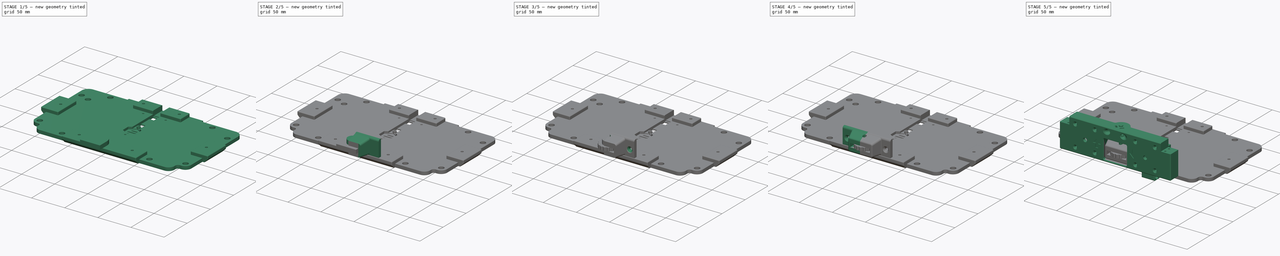
[diagram: build sequence overview — one tinted view per stage of 5, left to right]
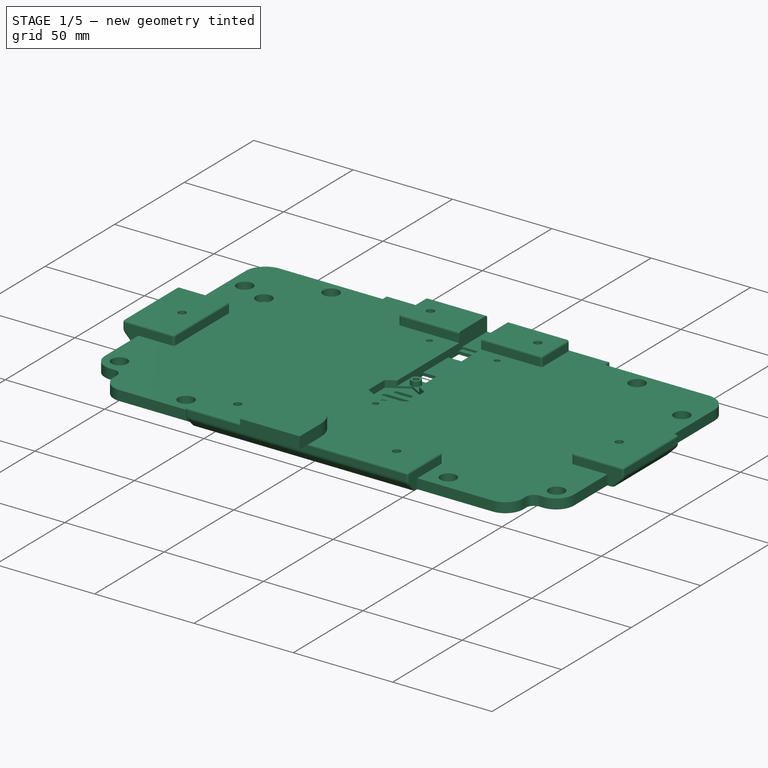
[diagram: stage 1 of 5 — iso view after this stage's code; geometry added in this stage tinted green]
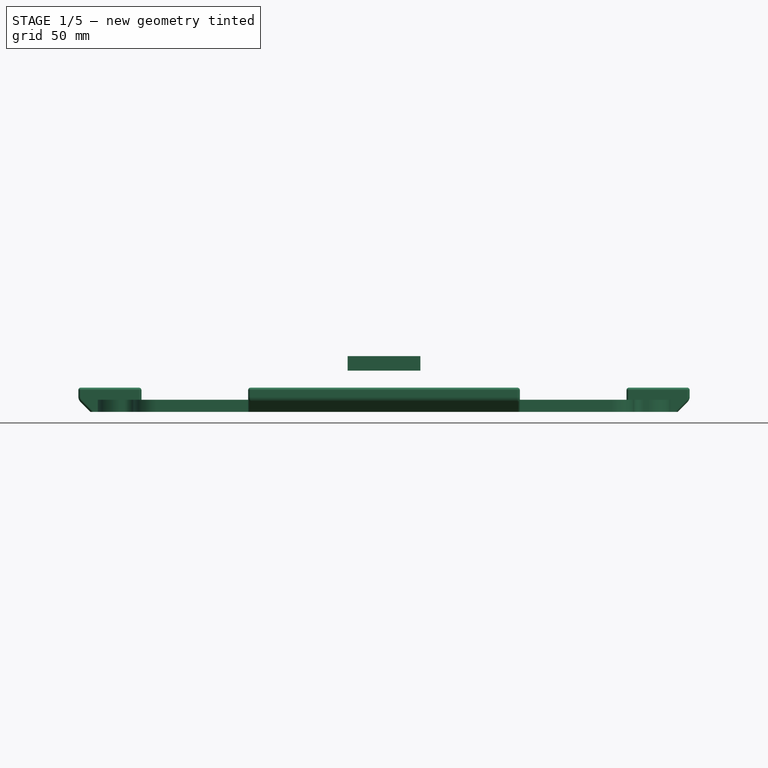
[diagram: stage 1 of 5 — front view after this stage's code; geometry added in this stage tinted green]
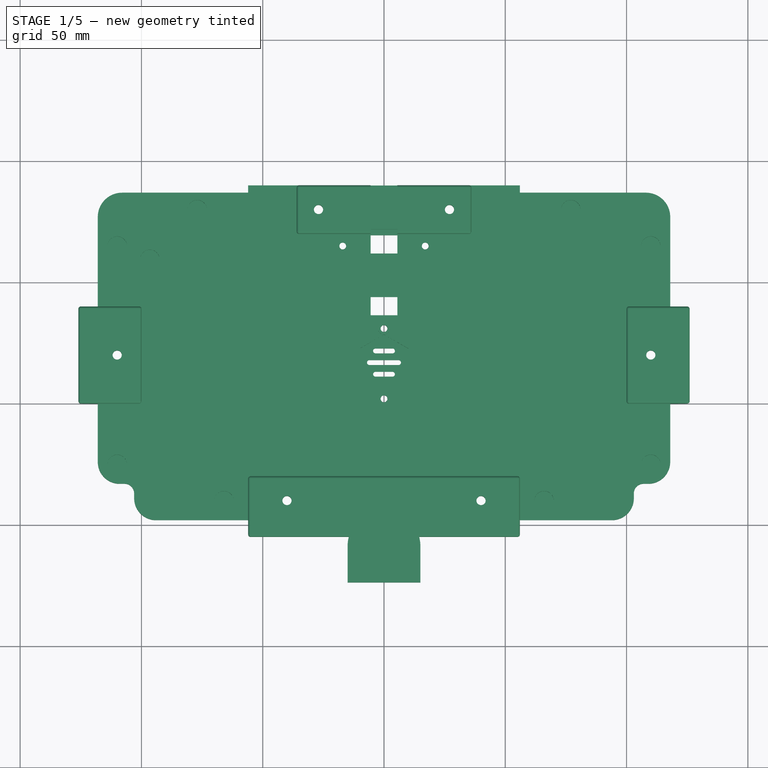
[diagram: stage 1 of 5 — top view after this stage's code; geometry added in this stage tinted green]
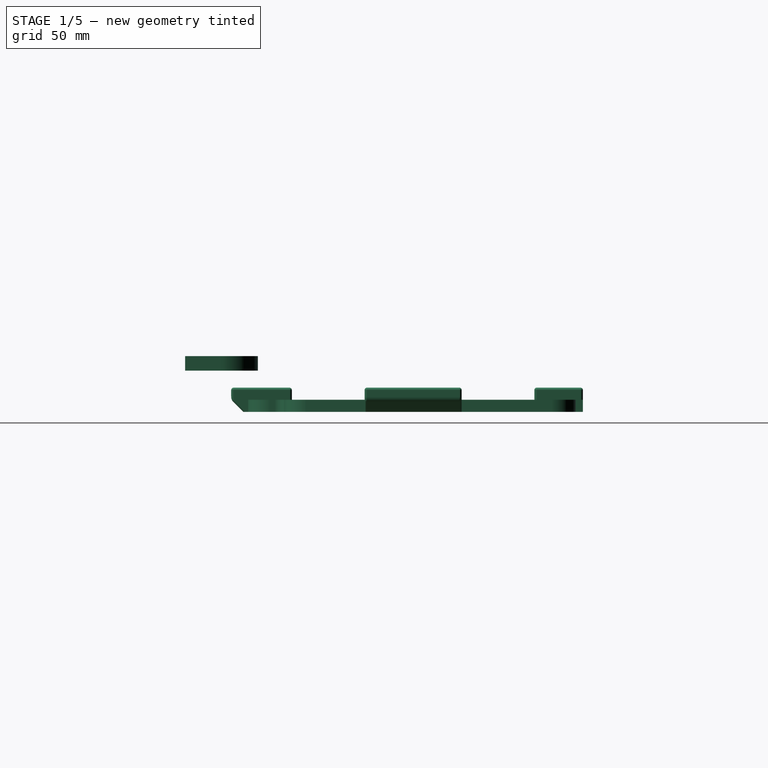
[diagram: stage 1 of 5 — right view after this stage's code; geometry added in this stage tinted green]
FCSTD DOCUMENT  (FreeCAD 0.16RUnknown)
Label: FocusWheelHolder
License: All rights reserved
LicenseURL: http://en.wikipedia.org/wiki/All_rights_reserved
objects: Part::FeaturePython×14, Sketcher::SketchObject×9, PartDesign::Pad×7, Part::Cut×5, Part::Fillet×4, Part::MultiFuse×3, App::DocumentObjectGroup×3, PartDesign::Revolution×2, Part::Mirroring×2, Part::Cylinder×2, Part::Chamfer×2, Part::Feature×1, PartDesign::Draft×1, Spreadsheet::Sheet×1
note: 61 computed .brp shape members not serialized (recipe doc carries the construction recipe); baked Part::Feature solids carry a one-line shape summary decoded from their .brp

FEATURE [Sketcher::SketchObject] Sketch003  label="TWSlot"
  Placement = pos=(0,0,0) rot=(1,0,0;1.5708rad)
  sketch-geometry (4):
    g0: LineSegment StartX=0 StartY=3 StartZ=0 EndX=15 EndY=3 EndZ=0
    g1: LineSegment StartX=15 StartY=3 StartZ=0 EndX=15 EndY=0 EndZ=0
    g2: LineSegment StartX=15 StartY=0 StartZ=0 EndX=0 EndY=0 EndZ=0
    g3: LineSegment StartX=0 StartY=0 StartZ=0 EndX=0 EndY=3 EndZ=0
  constraints (11):
    c: Coincident(g0,g1)
    c: Coincident(g1,g2)
    c: Coincident(g2,g3)
    c: Coincident(g2,g-1)
    c: Horizontal(g0)
    c: Horizontal(g2)
    c: Vertical(g3)
    c: Vertical(g1)
    c: DistanceY(g1,g1) = 3
    c: DistanceX(g2,g2) = 15
    c: Coincident(g3,g0)
FEATURE [PartDesign::Revolution] Revolution  label="TWSlot001"
  Angle = 360
  Axis = (0,0,1)
  Base = (0,0,0)
  Placement = pos=(0,0,0) rot=(1,0,0;1.5708rad)
  ReferenceAxis = -> Sketch003 [V_Axis]
  Reversed = true
  Sketch = -> Sketch003
FEATURE [Part::Mirroring] Part__Mirroring  label="TWSlot001 (Mirror #1)"
  Base = (0,0,0)
  Normal = (0,0,1)
  Source = -> Revolution
FEATURE [Part::MultiFuse] Fusion001  label="TWSlot002"
  Shapes = -> [Revolution,Part__Mirroring]
FEATURE [Sketcher::SketchObject] Sketch004  label="TWSlot003"
  Placement = pos=(0,0,3) rot=(0,0,1;0rad)
  Support = -> Fusion001 [Face1]
  sketch-geometry (6):
    g0: LineSegment StartX=15 StartY=0 StartZ=0 EndX=15 EndY=-15 EndZ=0
    g1: LineSegment StartX=15 StartY=-15 StartZ=0 EndX=-15 EndY=-15 EndZ=0
    g2: LineSegment StartX=-15 StartY=-15 StartZ=0 EndX=-15 EndY=0 EndZ=0
    g3: ArcOfCircle CenterX=0 CenterY=0 CenterZ=0 NormalX=0 NormalY=0 NormalZ=1 Radius=7 StartAngle=3.14159 EndAngle=6.28319
    g4: LineSegment StartX=-15 StartY=0 StartZ=0 EndX=-7 EndY=0 EndZ=0
    g5: LineSegment StartX=7 StartY=0 StartZ=0 EndX=15 EndY=0 EndZ=0
  constraints (17):
    c: Coincident(g0,g1)
    c: Coincident(g1,g2)
    c: Horizontal(g1)
    c: Vertical(g0)
    c: Vertical(g2)
    c: PointOnObject(g0,g-1)
    c: Symmetric(g0,g2,g-2)
    c: DistanceX(g1,g1) = 30
    c: DistanceY(g0,g0) = 15
    c: Coincident(g4,g2)
    c: Coincident(g4,g3)
    c: Coincident(g3,g5)
    c: Coincident(g5,g0)
    c: Horizontal(g5)
    c: Horizontal(g4)
    c: Coincident(g3,g-1)
    c: Radius(g3) = 7
FEATURE [PartDesign::Pad] Pad002  label="TWSlot004"
  Length = 10
  Length2 = 100
  Sketch = -> Sketch004
  Type = 3
  UpToFace = -> Fusion001 [Face4]
FEATURE [Part::FeaturePython] refine001  label="refine_TWSlot004"  # WARN: FeaturePython — macro-defined, semantics opaque (R4)
  Base = -> Pad002
FEATURE [App::DocumentObjectGroup] Group002  label="Component_src"
  Group = -> [Fusion001,Pad002,Cylinder,Pad003,Pad005,Pad004,Revolution001,Pad006,refine001]
FEATURE [Part::FeaturePython] Clone003008006011  label="Clone of refine_TWSlot004"  # Draft clone (typed FeaturePython)
  Objects = -> [refine001]
  Placement = pos=(0,-9,0) rot=(0,0,1;0rad)
  Scale = (1,1,1)
FEATURE [Part::FeaturePython] FocusWheel_01  label="FocusWheel"  # a2plus imported part (geometry in sourceFile) (typed FeaturePython)
  Placement = pos=(0,-9,-2.5) rot=(0,0,1;0rad)
  fixedPosition = false
  sourceFile = ./FocusWheel.fcstd
  timeLastImport = 1.52277e+09
  updateColors = true
FEATURE [Part::FeaturePython] LowerCover_01  label="LowerCover"  # a2plus imported part (geometry in sourceFile) (typed FeaturePython)
  Placement = pos=(0,67,-15) rot=(0,0,1;0rad)
  fixedPosition = false
  sourceFile = ./../../MainFrame/LowerCover.fcstd
  timeLastImport = 1.52166e+09
  updateColors = true
FEATURE [App::DocumentObjectGroup] Group  label="Reference"
  Group = -> [Fillet002,Clone003008006002,FrontGuide_01,FrontCrane_01,Cylinder004,Clone003008006008,FocusWheel_01,LowerCover_01]
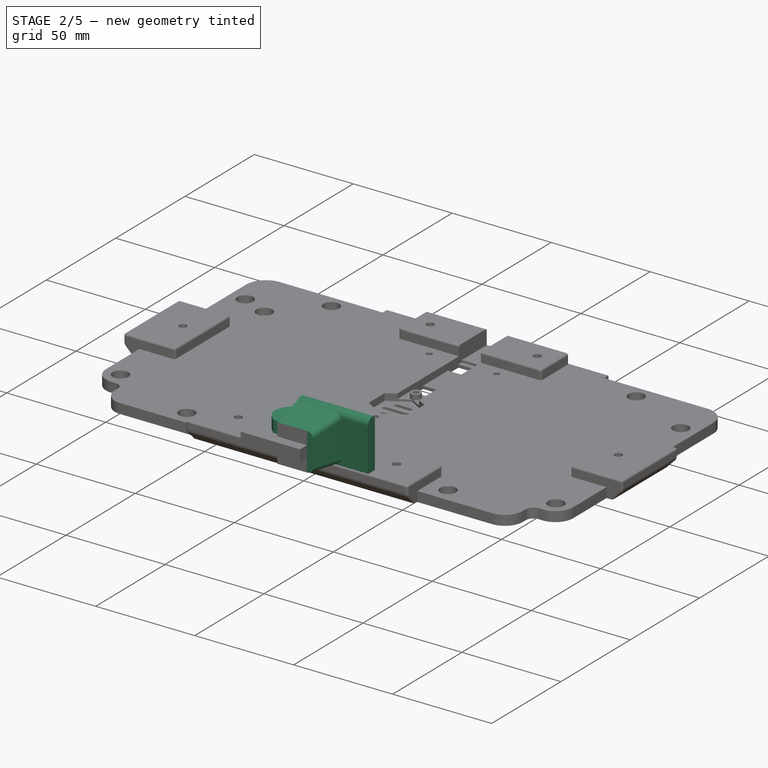
[diagram: stage 2 of 5 — iso view after this stage's code; geometry added in this stage tinted green]
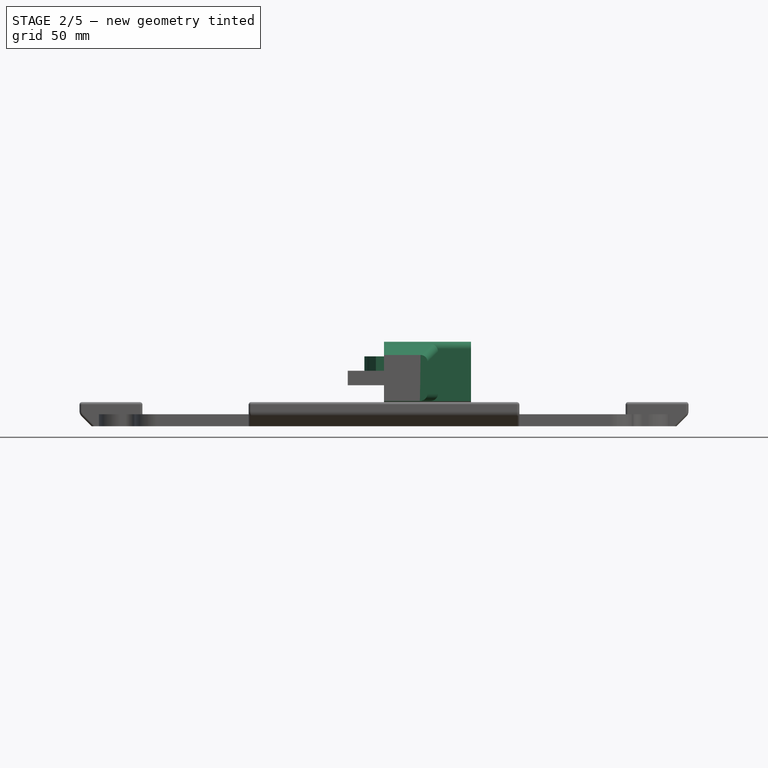
[diagram: stage 2 of 5 — front view after this stage's code; geometry added in this stage tinted green]
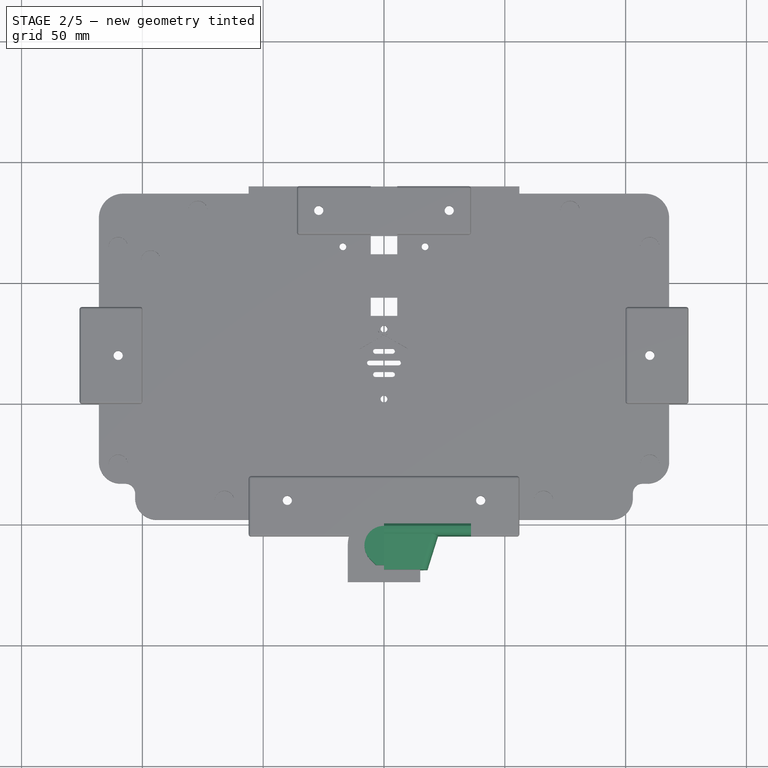
[diagram: stage 2 of 5 — top view after this stage's code; geometry added in this stage tinted green]
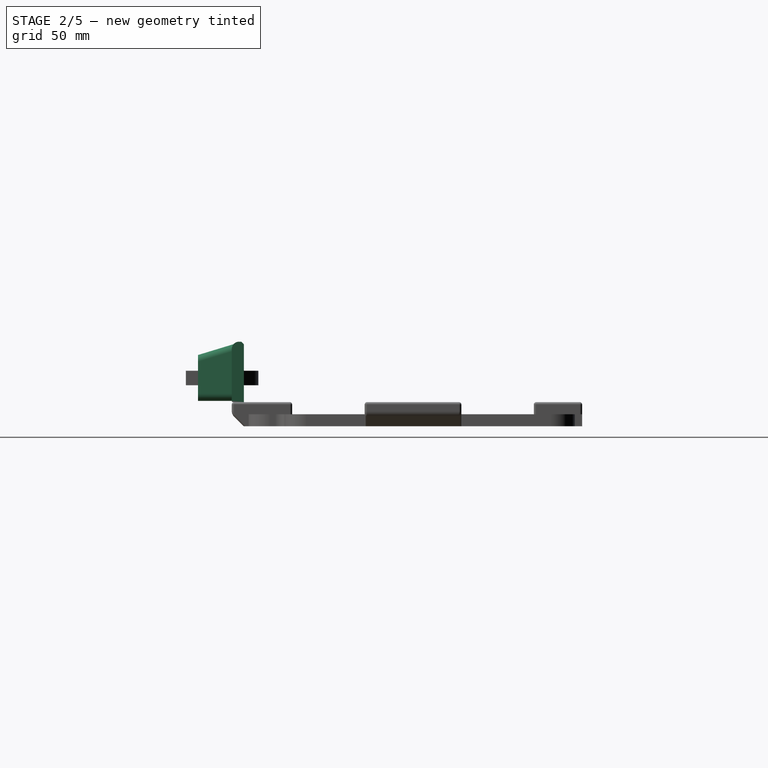
[diagram: stage 2 of 5 — right view after this stage's code; geometry added in this stage tinted green]
FEATURE [Part::Feature] Fillet002  label="T slot extrusion 20x20x200.001"
  Placement = pos=(-100,0,-10) rot=(0,-1,0;1.5708rad)
  shape: bbox 200 x 20 x 20 mm, 51 faces (baked)
FEATURE [Sketcher::SketchObject] Sketch  label="Base"
  Placement = pos=(0,0,0) rot=(1,0,0;1.5708rad)
  sketch-geometry (4):
    g0: LineSegment StartX=0 StartY=15 StartZ=0 EndX=36 EndY=15 EndZ=0
    g1: LineSegment StartX=36 StartY=15 StartZ=0 EndX=36 EndY=-10 EndZ=0
    g2: LineSegment StartX=36 StartY=-10 StartZ=0 EndX=0 EndY=-10 EndZ=0
    g3: LineSegment StartX=0 StartY=-10 StartZ=0 EndX=0 EndY=15 EndZ=0
  constraints (12):
    c: Coincident(g0,g1)
    c: Coincident(g1,g2)
    c: Coincident(g2,g3)
    c: Coincident(g3,g0)
    c: Horizontal(g0)
    c: Horizontal(g2)
    c: Vertical(g1)
    c: Vertical(g3)
    c: PointOnObject(g0,g-2)
    c: DistanceY(g0) = 15
    c: DistanceY(g1,g1) = 25
    c: DistanceX(g0,g0) = 36
FEATURE [PartDesign::Pad] Pad  label="Base001"
  Length = 5
  Length2 = 100
  Placement = pos=(0,0,0) rot=(1,0,0;1.5708rad)
  Sketch = -> Sketch
  Type = 0
FEATURE [Part::Fillet] Fillet  label="NiceFillet"
  Base = -> Pad
  Edges = 2 edges: [Edge4 r=3,Edge10 r=0.5]
FEATURE [Sketcher::SketchObject] Sketch001  label="TWHolder"
  sketch-geometry (4):
    g0: LineSegment StartX=0 StartY=-19 StartZ=0 EndX=18 EndY=-19 EndZ=0
    g1: LineSegment StartX=18 StartY=-19 StartZ=0 EndX=23 EndY=-3 EndZ=0
    g2: LineSegment StartX=23 StartY=-3 StartZ=0 EndX=0 EndY=-3 EndZ=0
    g3: LineSegment StartX=0 StartY=-3 StartZ=0 EndX=0 EndY=-19 EndZ=0
  constraints (12):
    c: Coincident(g0,g1)
    c: Coincident(g1,g2)
    c: Coincident(g2,g3)
    c: Coincident(g0,g3)
    c: Horizontal(g2)
    c: Vertical(g3)
    c: Horizontal(g0)
    c: PointOnObject(g2,g-2)
    c: DistanceY(g2) = -3
    c: DistanceY(g0) = -19
    c: DistanceX(g0,g0) = 18
    c: DistanceX(g2,g2) = 23
FEATURE [PartDesign::Pad] Pad001  label="TWHolder001"
  Length = 9.5
  Length2 = 9.5
  Sketch = -> Sketch001
  Type = 4
FEATURE [PartDesign::Draft] Draft  label="TWHDraft"
  Angle = 16.9
  Base = -> Pad001 [Face6]
  NeutralPlane = -> Pad001 [Face1]
  Reversed = true
FEATURE [Part::Fillet] Fillet003  label="NiceFillet001"
  Base = -> Draft
  Edges = 2 edges r=3: [Edge6,Edge7]
FEATURE [Sketcher::SketchObject] Sketch011  label="625ZZHole"
  expr: Constraints[11] = 8 + pars.CilLoose
  sketch-geometry (4):
    g0: ArcOfCircle CenterX=0 CenterY=0 CenterZ=0 NormalX=0 NormalY=0 NormalZ=1 Radius=8.1 StartAngle=2.3562 EndAngle=7.06859
    g1: LineSegment StartX=-5.72759 StartY=5.72754 StartZ=0 EndX=-3.35513 EndY=8.1 EndZ=0
    g2: LineSegment StartX=-3.35513 StartY=8.1 StartZ=0 EndX=3.35513 EndY=8.1 EndZ=0
    g3: LineSegment StartX=3.35513 StartY=8.1 StartZ=0 EndX=5.72754 EndY=5.72759 EndZ=0
  constraints (12):
    c: Coincident(g1,g2)
    c: Coincident(g2,g3)
    c: Coincident(g0,g1)
    c: Coincident(g0,g3)
    c: Tangent(g3,g0)
    c: Tangent(g0,g1)
    c: Tangent(g2,g0)
    c: Perpendicular(g1,g3)
    c: Horizontal(g2)
    c: Angle(g2,g3) = 2.35619
    c: Coincident(g0,g-1)
    c: Radius(g0) = 8.1
FEATURE [PartDesign::Pad] Pad006  label="625ZZHole001"
  Length = 8
  Length2 = 100
  Sketch = -> Sketch011
  Type = 0
FEATURE [Part::FeaturePython] Clone003008006009  label="Clone of 625ZZHole001"  # Draft clone (typed FeaturePython)
  Objects = -> [Pad006]
  Placement = pos=(0,-9,8.95) rot=(-1,0,0;3.14159rad)
  Scale = (1,1,1)
  expr: Placement.Base.z = 9 - pars.BearTight / 2
FEATURE [Part::Chamfer] Chamfer001
  Base = -> Fillet
  Edges = 1 edges r=1: [Edge3]
FEATURE [Part::MultiFuse] Fusion003
  Shapes = -> [Fillet003,Chamfer001]
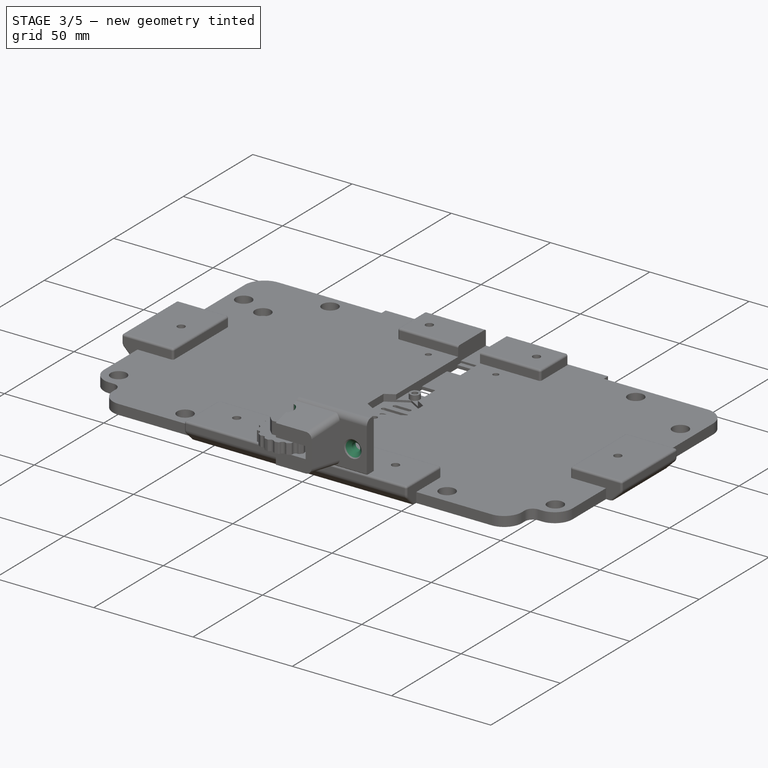
[diagram: stage 3 of 5 — iso view after this stage's code; geometry added in this stage tinted green]
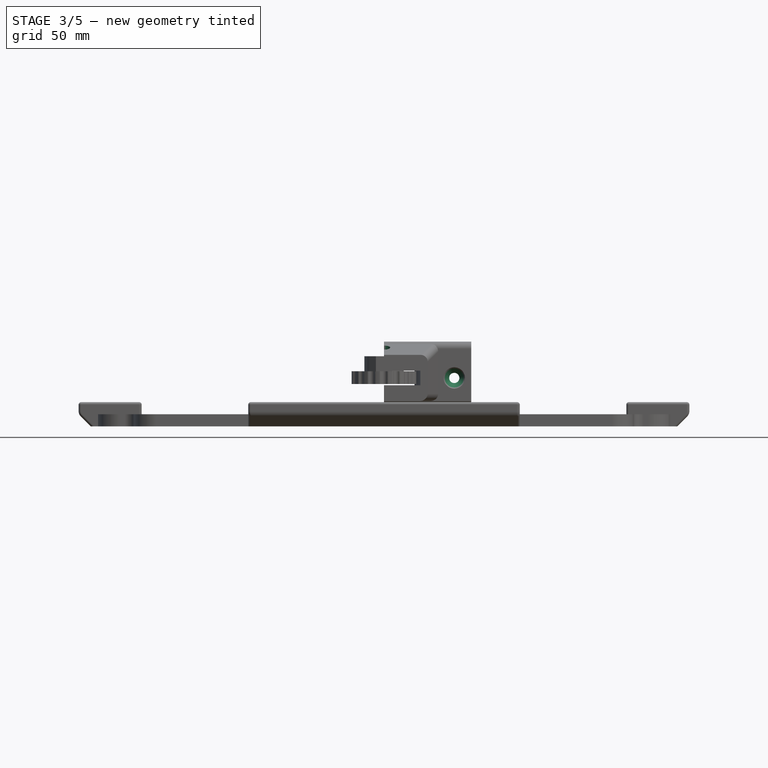
[diagram: stage 3 of 5 — front view after this stage's code; geometry added in this stage tinted green]
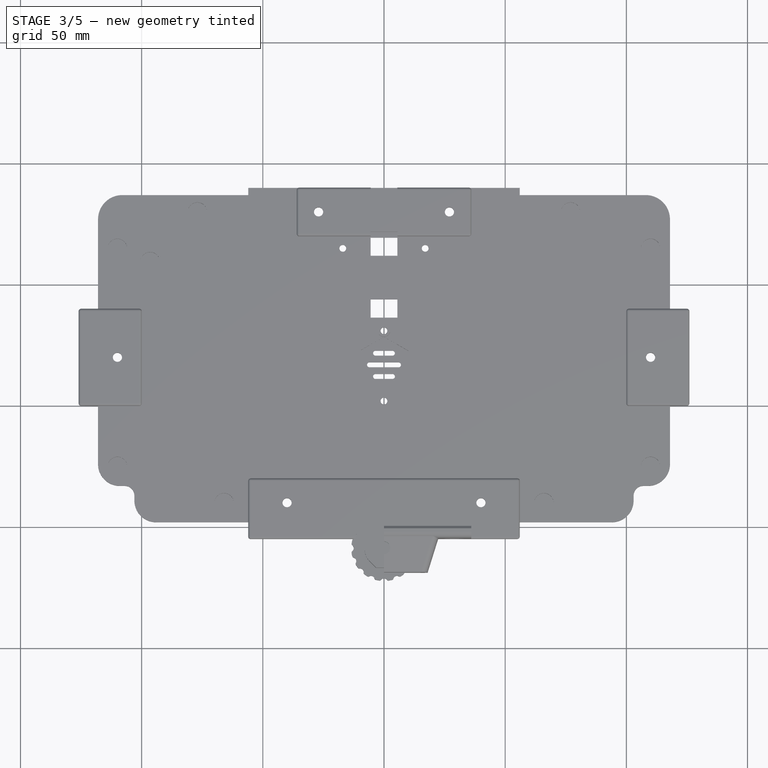
[diagram: stage 3 of 5 — top view after this stage's code; geometry added in this stage tinted green]
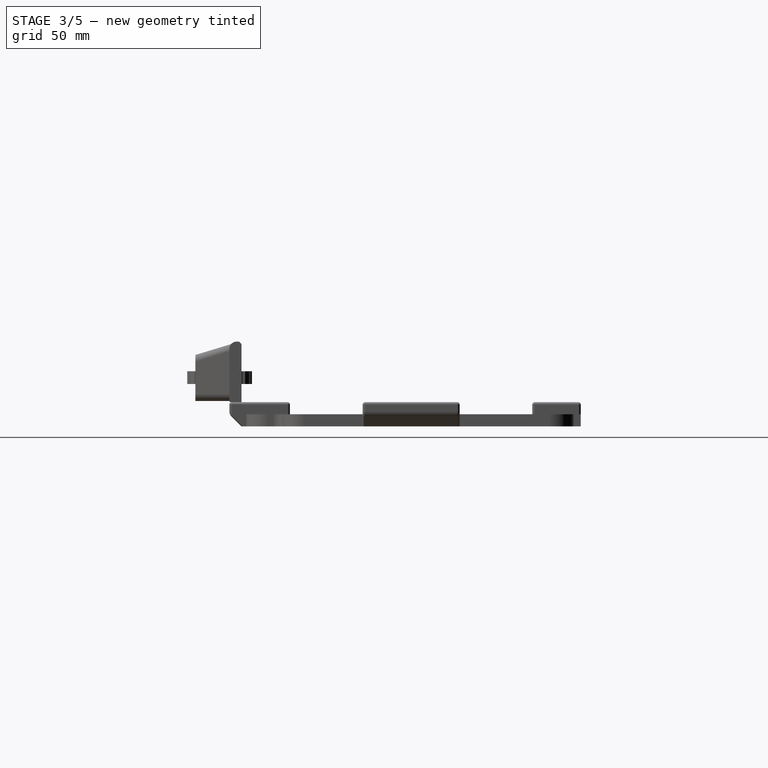
[diagram: stage 3 of 5 — right view after this stage's code; geometry added in this stage tinted green]
FEATURE [Sketcher::SketchObject] Sketch005  label="ThrRodHole"
  expr: Constraints[11] = 2.5 + pars.CilLoose
  sketch-geometry (4):
    g0: ArcOfCircle CenterX=0 CenterY=0 CenterZ=0 NormalX=0 NormalY=0 NormalZ=1 Radius=2.6 StartAngle=2.35619 EndAngle=7.06858
    g1: LineSegment StartX=-1.83848 StartY=1.83848 StartZ=0 EndX=-1.07696 EndY=2.6 EndZ=0
    g2: LineSegment StartX=-1.07696 StartY=2.6 StartZ=0 EndX=1.07696 EndY=2.6 EndZ=0
    g3: LineSegment StartX=1.07696 StartY=2.6 StartZ=0 EndX=1.83848 EndY=1.83848 EndZ=0
  constraints (12):
    c: Coincident(g1,g2)
    c: Coincident(g2,g3)
    c: Coincident(g0,g1)
    c: Coincident(g0,g3)
    c: Tangent(g3,g0)
    c: Tangent(g0,g1)
    c: Tangent(g2,g0)
    c: Perpendicular(g1,g3)
    c: Horizontal(g2)
    c: Angle(g2,g3) = 2.35619
    c: Coincident(g0,g-1)
    c: Radius(g0) = 2.6
FEATURE [PartDesign::Pad] Pad003  label="ThrRodHole001"
  Length = 50
  Length2 = 100
  Sketch = -> Sketch005
  Type = 0
FEATURE [Part::FeaturePython] Clone003008006003  label="Clone of ThrRodHole001"  # Draft clone (typed FeaturePython)
  Objects = -> [Pad003]
  Placement = pos=(0,-9,-14) rot=(0,0,1;3.14159rad)
  Scale = (1,1,1)
FEATURE [Sketcher::SketchObject] Sketch010  label="DIN7991M4Bolt"
  expr: Constraints[11] = pars.CilLoose + 2
  sketch-geometry (5):
    g0: LineSegment StartX=0 StartY=0 StartZ=0 EndX=4.4 EndY=0 EndZ=0
    g1: LineSegment StartX=4.4 StartY=0 StartZ=0 EndX=2.1 EndY=-2.3 EndZ=0
    g2: LineSegment StartX=2.1 StartY=-2.3 StartZ=0 EndX=2.1 EndY=-20 EndZ=0
    g3: LineSegment StartX=2.1 StartY=-20 StartZ=0 EndX=0 EndY=-20 EndZ=0
    g4: LineSegment StartX=0 StartY=-20 StartZ=0 EndX=0 EndY=0 EndZ=0
  constraints (14):
    c: Coincident(g0,g1)
    c: Coincident(g1,g2)
    c: Coincident(g2,g3)
    c: Coincident(g3,g4)
    c: Coincident(g4,g0)
    c: Vertical(g4)
    c: Vertical(g2)
    c: Horizontal(g0)
    c: Horizontal(g3)
    c: Coincident(g0,g-1)
    c: Angle(g0,g1) = 0.785398
    c: DistanceX(g3,g3) = 2.1
    c: DistanceY(g4,g4) = 20
    c: DistanceY(g1,g0) = 2.3
FEATURE [Spreadsheet::Sheet] Spreadsheet001  label="pars"
  cells = A1=Bolts and Nuts; B1=Value; D1=Components; E1=Value; A2=Thread Tight Tolerance (Radius, ratio); B2(ThrTighRatio)=0.96; D2=Tight Cilinder Tolerances (Radius, mm); E2(CilTight)=0.1; A3=Thread Tight Tolerance (Radius, mm); B3(ThrTightmm)=0.1; D3=Loose Cilinder Tolerances (Radius, mm); E3(CilLoose)=0.1; A5=Nut Slot Width Clearance (mm); B5(NutWidthClearmm)=0.1; A6=Nut Slot Thickess Clearance (mm); B6(NutThickClearmm)=0.1; A13=Particular parameters; B13=Value; A14=Threaded Rod Clearance; B14(ThrRodClear)=0.15; A15=625ZZ Tightness; B15(BearTight)=0.1
FEATURE [PartDesign::Revolution] Revolution001  label="DIN7991M4Bolt001"
  Angle = 360
  Axis = (0,1,0)
  Base = (0,0,0)
  ReferenceAxis = -> Sketch010 [V_Axis]
  Reversed = true
  Sketch = -> Sketch010
FEATURE [Part::FeaturePython] Clone003008006006  label="Clone of DIN7991M4Bolt001"  # Draft clone (typed FeaturePython)
  Objects = -> [Revolution001]
  Placement = pos=(29,-5,0) rot=(0,0,1;3.14159rad)
  Scale = (1,1,1)
FEATURE [Part::Cut] Cut  label="TWSlot005"
  Base = -> Fusion003
  Tool = -> Clone003008006011
FEATURE [Part::Chamfer] Chamfer  label="AntiCreaseChamfer"
  Base = -> Cut
  Edges = 1 edges r=1: [Edge47]
FEATURE [Part::Cut] Cut001  label="ThrRodCut"
  Base = -> Chamfer
  Tool = -> Clone003008006003
FEATURE [Part::Cut] Cut002  label="BoltCut"
  Base = -> Cut001
  Tool = -> Clone003008006006
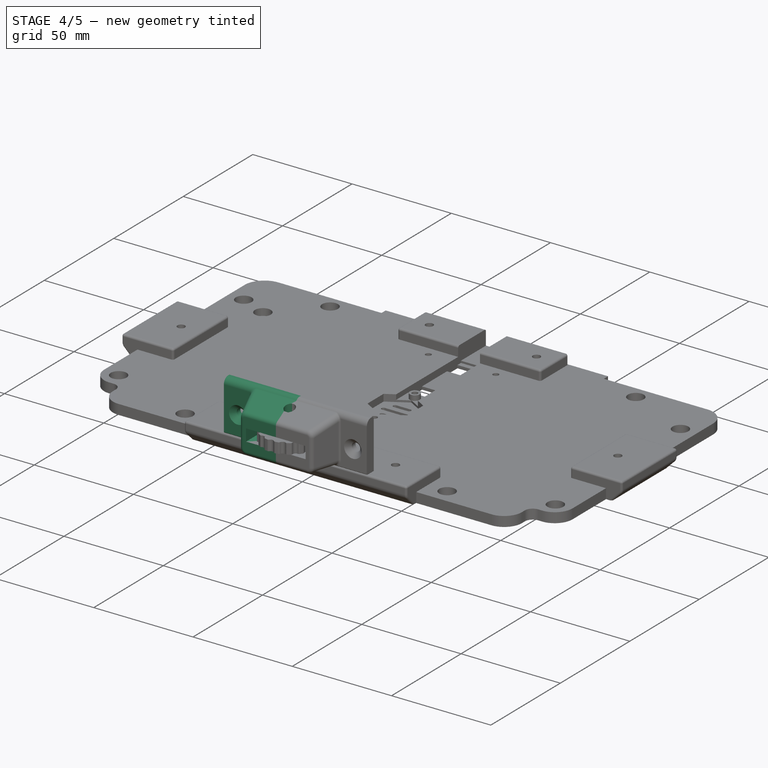
[diagram: stage 4 of 5 — iso view after this stage's code; geometry added in this stage tinted green]
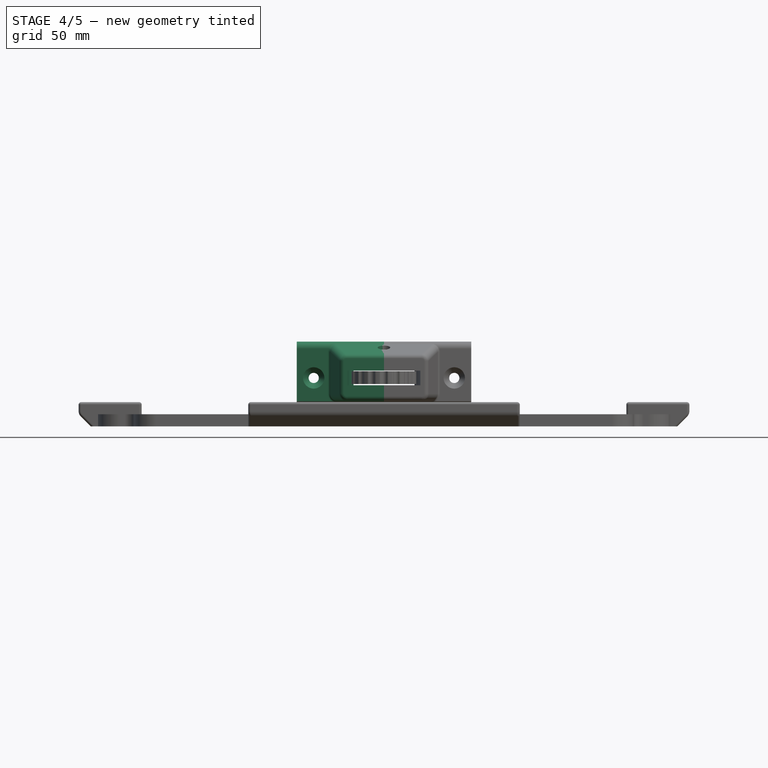
[diagram: stage 4 of 5 — front view after this stage's code; geometry added in this stage tinted green]
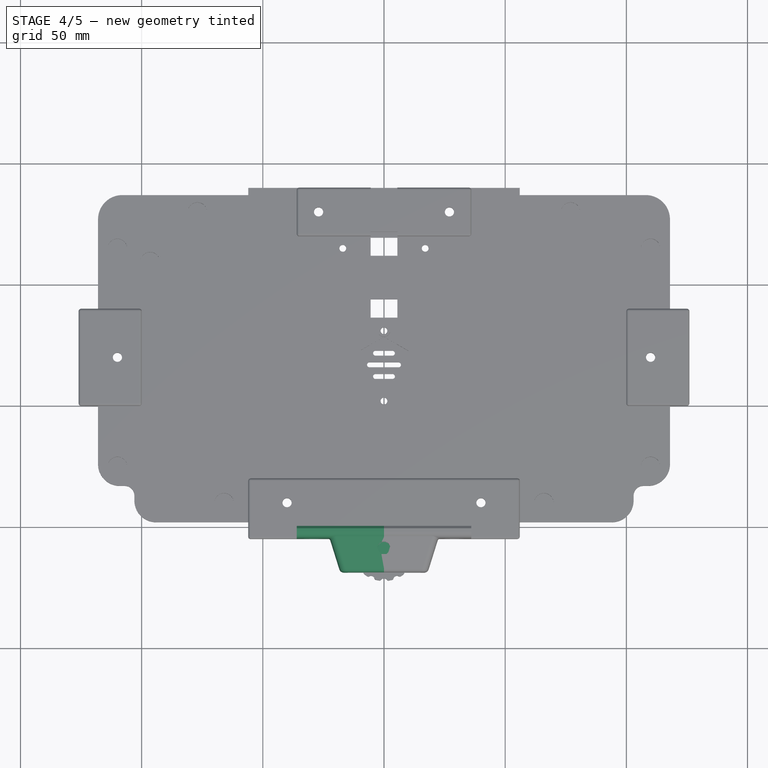
[diagram: stage 4 of 5 — top view after this stage's code; geometry added in this stage tinted green]
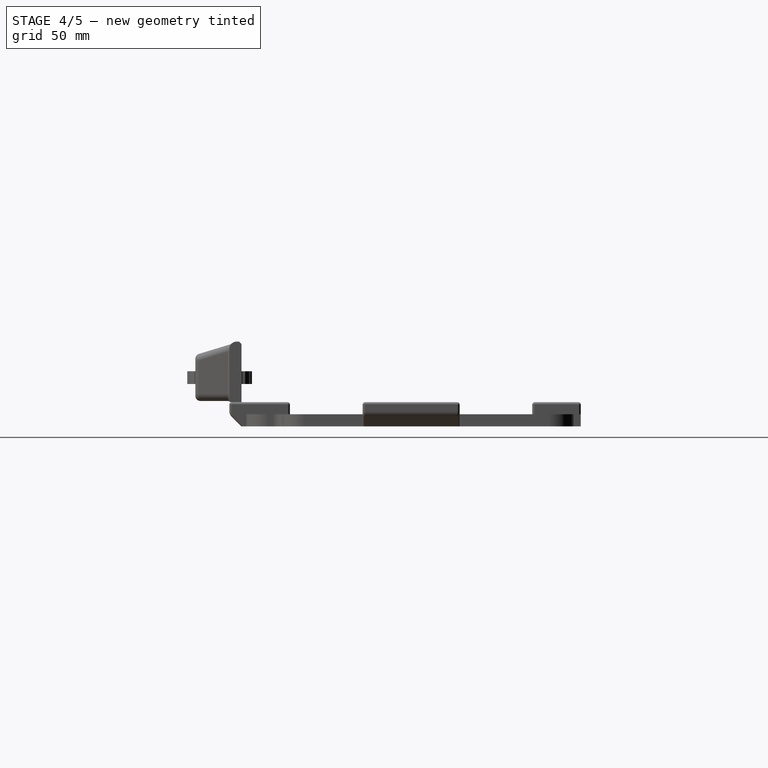
[diagram: stage 4 of 5 — right view after this stage's code; geometry added in this stage tinted green]
FEATURE [Part::Cylinder] Cylinder004  label="625zz"
  Angle = 360
  Height = 5
  Placement = pos=(0,-9,4) rot=(0,0,1;0rad)
  Radius = 8
FEATURE [Part::FeaturePython] Clone003008006008  label="Clone of 625zz"  # Draft clone (typed FeaturePython)
  Objects = -> [Cylinder004]
  Placement = pos=(0,-9,-8.5) rot=(0,0,1;0rad)
  Scale = (1,1,1)
FEATURE [Part::FeaturePython] Clone003008006010  label="Clone of 625ZZHole002"  # Draft clone (typed FeaturePython)
  Objects = -> [Pad006]
  Placement = pos=(0,-9,-8.45) rot=(0,0,1;3.14159rad)
  Scale = (1,1,1)
  expr: Placement.Base.z = -8.5 + pars.BearTight / 2
FEATURE [Part::Fillet] Fillet006
  Base = -> Cut002
  Edges = 1 edges r=1: [Edge66]
FEATURE [Part::Cut] Cut003
  Base = -> Fillet006
  Tool = -> Clone003008006009
FEATURE [Part::Cut] Cut004  label="BearingCuts"
  Base = -> Cut003
  Tool = -> Clone003008006010
FEATURE [Part::Fillet] Fillet007  label="FrontFillet"
  Base = -> Cut004
  Edges = 1 edges r=2: [Edge30]
FEATURE [Part::Mirroring] Part__Mirroring003  label="Fillet007 (Mirror #3)"
  Base = (0,0,0)
  Normal = (1,0,0)
  Source = -> Fillet007
FEATURE [Part::MultiFuse] Fusion004  label="Mirroring"
  Shapes = -> [Fillet007,Part__Mirroring003]
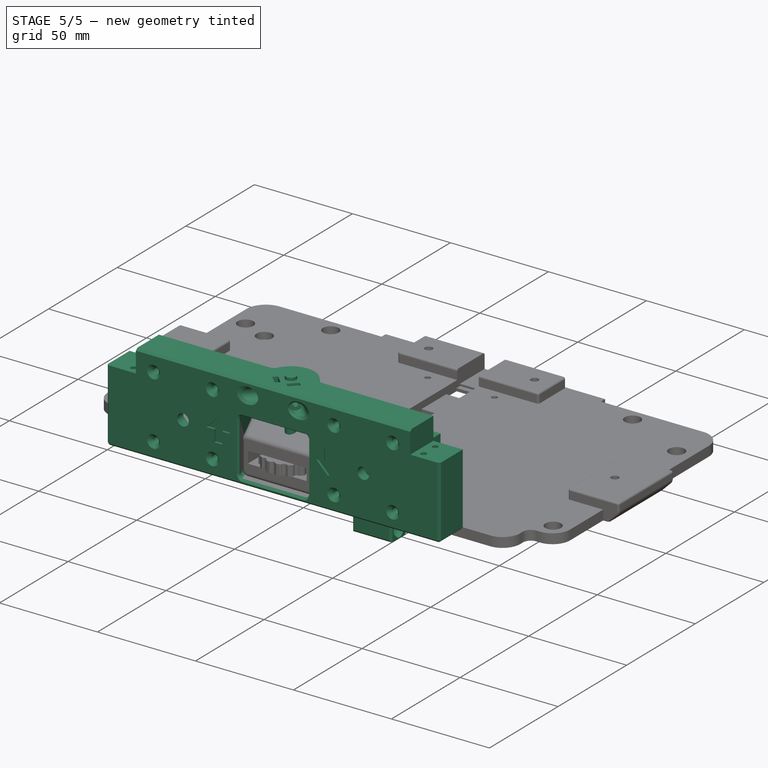
[diagram: stage 5 of 5 — iso view after this stage's code; geometry added in this stage tinted green]
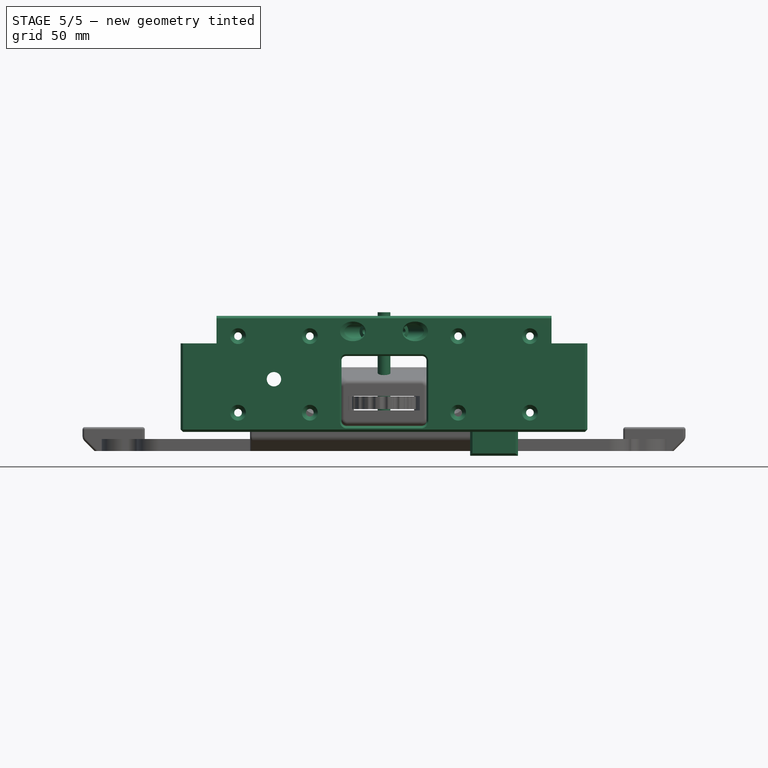
[diagram: stage 5 of 5 — front view after this stage's code; geometry added in this stage tinted green]
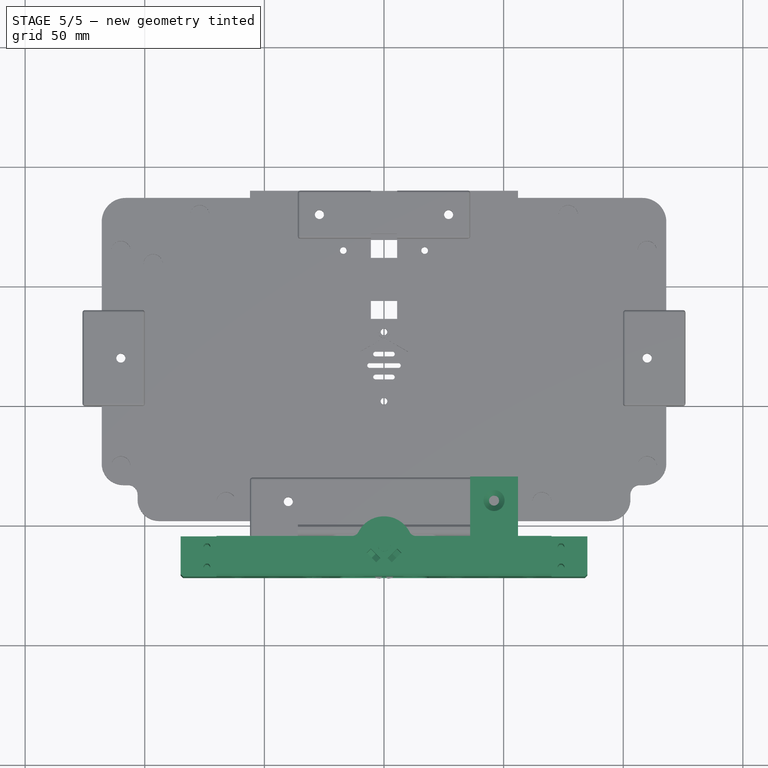
[diagram: stage 5 of 5 — top view after this stage's code; geometry added in this stage tinted green]
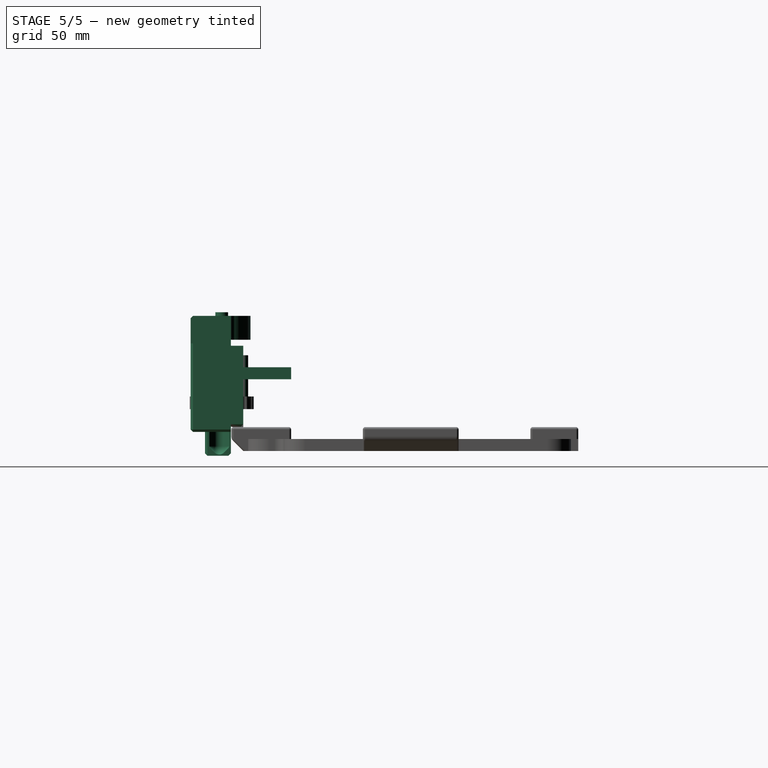
[diagram: stage 5 of 5 — right view after this stage's code; geometry added in this stage tinted green]
FEATURE [Part::Cylinder] Cylinder  label="M5ThrRod"
  Angle = 360
  Height = 50
  Radius = 2.65
  expr: Radius = 2.5 + pars.ThrRodClear
FEATURE [Part::FeaturePython] Clone003008006002  label="Clone of M5ThrRod"  # Draft clone (typed FeaturePython)
  Objects = -> [Cylinder]
  Placement = pos=(0,-9,-12) rot=(0,0,1;0rad)
  Scale = (1,1,1)
FEATURE [Sketcher::SketchObject] Sketch008  label="M4HoleV"
  sketch-geometry (1):
    g0: Circle CenterX=0 CenterY=0 CenterZ=0 NormalX=0 NormalY=0 NormalZ=1 Radius=2
  constraints (2):
    c: Coincident(g0,g-1)
    c: Radius(g0) = 2
FEATURE [PartDesign::Pad] Pad004  label="M4HoleV001"
  Length = 20
  Length2 = 100
  Sketch = -> Sketch008
  Type = 0
FEATURE [Sketcher::SketchObject] Sketch007  label="M4HoleH"
  sketch-geometry (4):
    g0: ArcOfCircle CenterX=0 CenterY=0 CenterZ=0 NormalX=0 NormalY=0 NormalZ=1 Radius=2 StartAngle=2.3562 EndAngle=7.06858
    g1: LineSegment StartX=-1.41422 StartY=1.41421 StartZ=0 EndX=-0.828427 EndY=2 EndZ=0
    g2: LineSegment StartX=-0.828427 StartY=2 StartZ=0 EndX=0.828427 EndY=2 EndZ=0
    g3: LineSegment StartX=0.828427 StartY=2 StartZ=0 EndX=1.41422 EndY=1.41421 EndZ=0
  constraints (12):
    c: Coincident(g1,g2)
    c: Coincident(g2,g3)
    c: Coincident(g1,g0)
    c: Coincident(g3,g0)
    c: Tangent(g0,g3)
    c: Tangent(g0,g1)
    c: Perpendicular(g3,g1)
    c: Horizontal(g2)
    c: Angle(g2,g3) = 2.35619
    c: Coincident(g0,g-1)
    c: Tangent(g0,g2)
    c: Radius(g0) = 2
FEATURE [PartDesign::Pad] Pad005  label="M4HoleH001"
  Length = 20
  Length2 = 100
  Sketch = -> Sketch007
  Type = 0
FEATURE [Part::FeaturePython] FrontGuide_01  label="FrontGuide"  # a2plus imported part (geometry in sourceFile) (typed FeaturePython)
  Placement = pos=(46,0,0) rot=(0,0,1;0rad)
  fixedPosition = true
  sourceFile = ./FrontGuide.fcstd
  timeLastImport = 1.52166e+09
  updateColors = true
FEATURE [Part::FeaturePython] FrontCrane_01  label="FrontCrane"  # a2plus imported part (geometry in sourceFile) (typed FeaturePython)
  Placement = pos=(0,-5,10) rot=(0,0,1;0rad)
  fixedPosition = false
  sourceFile = ./FrontCrane.fcstd
  timeLastImport = 1.52166e+09
  updateColors = true
FEATURE [Part::FeaturePython] refine  label="refine_Mirroring"  # WARN: FeaturePython — macro-defined, semantics opaque (R4)
  Base = -> Fusion004
FEATURE [App::DocumentObjectGroup] Group001  label="src"
  Group = -> [Pad,Pad001,Cut,Cut001,Cut002,refine]
FEATURE [Part::FeaturePython] Clone003008006007  label="FocusWheelHolder"  # Draft clone (typed FeaturePython)
  Objects = -> [refine]
  Scale = (1,1,1)
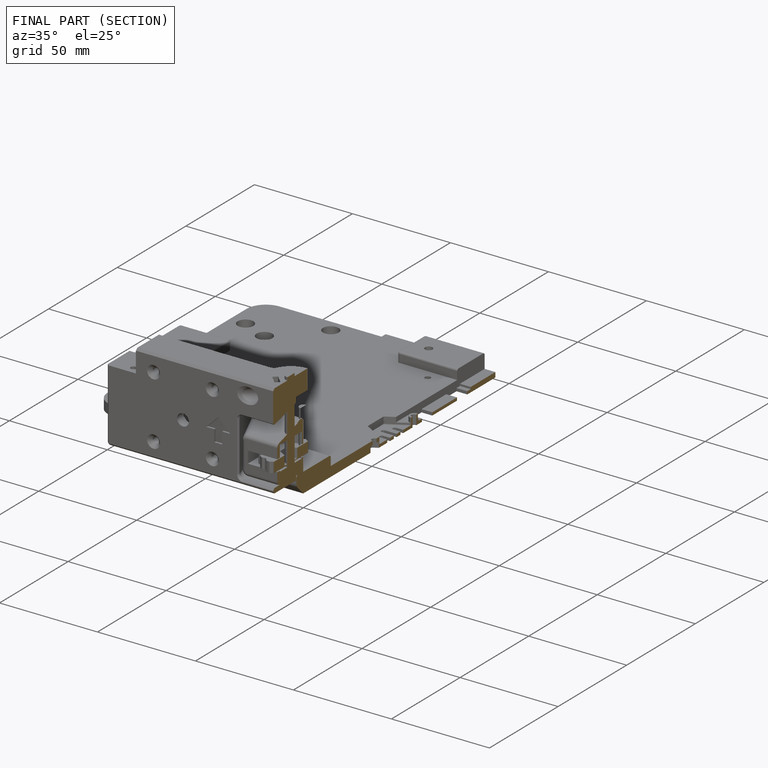
[diagram: finished part — half-section view (interior)]
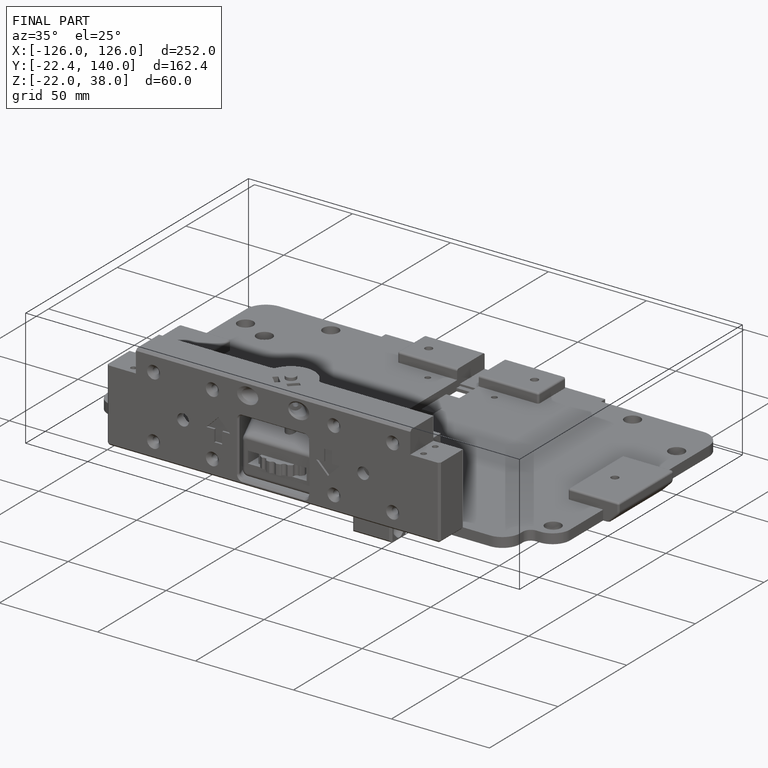
[diagram: finished part — iso view with bounding-box wireframe]
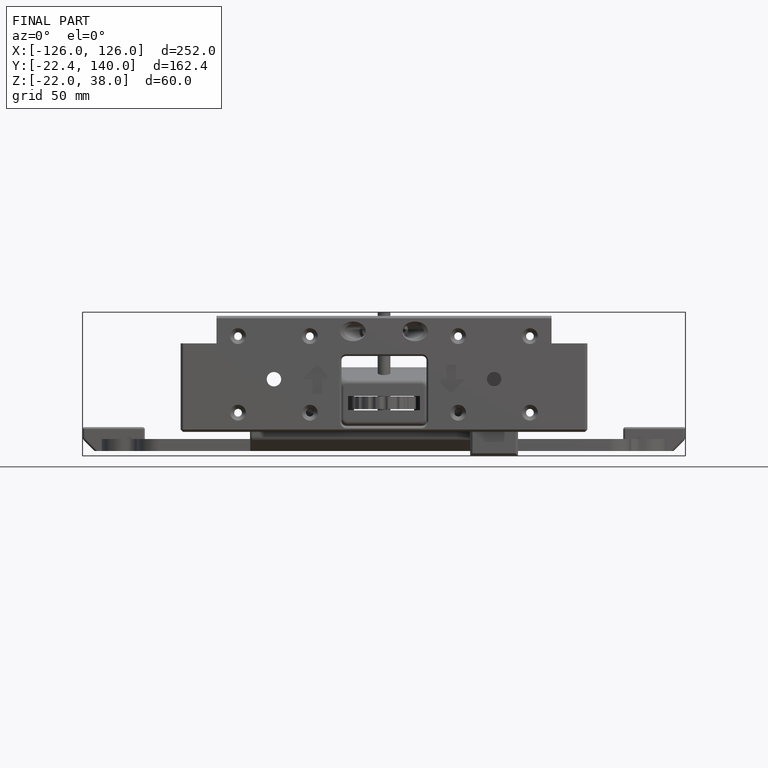
[diagram: finished part — front view with bounding-box wireframe]
